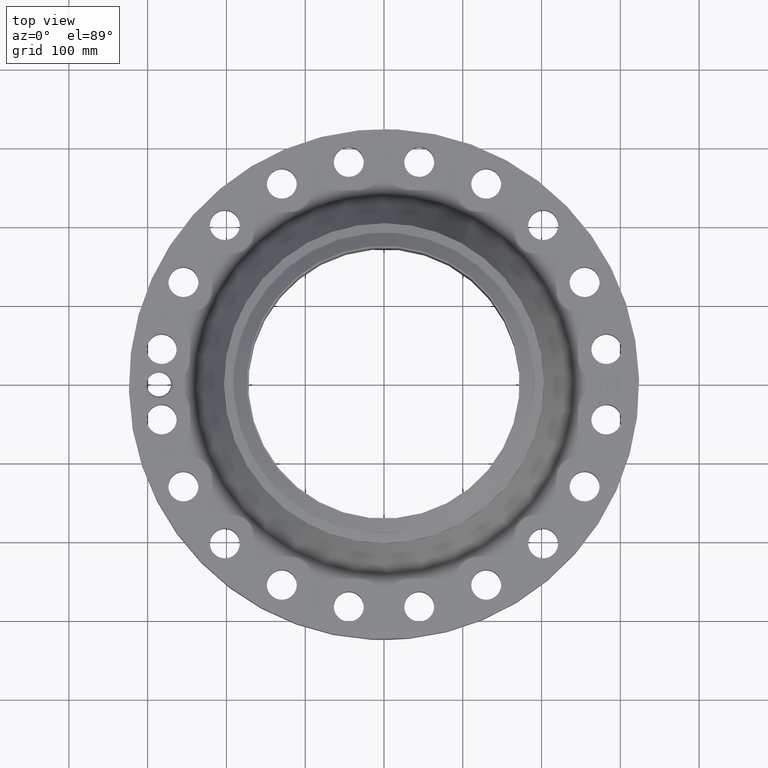
[diagram: clean part render]
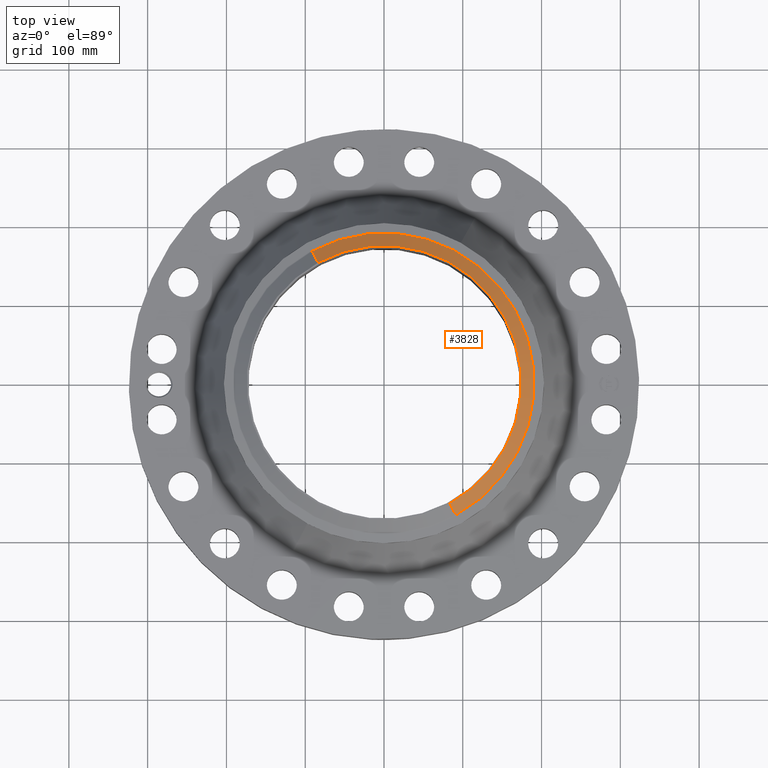
[diagram: same view with one face highlighted and labeled with its STEP entity id]
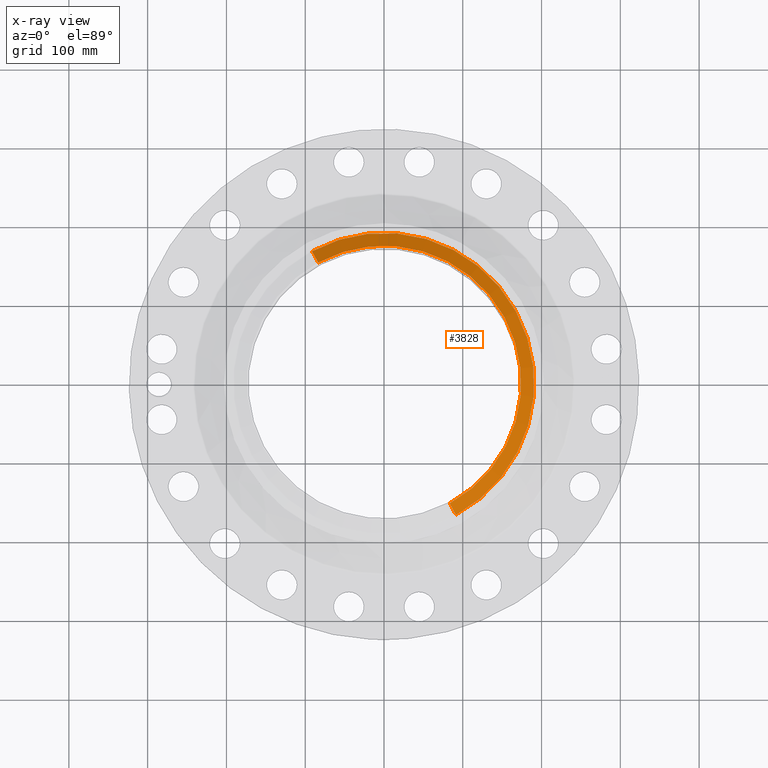
[diagram: x-ray of the same camera — body ghosted, the highlighted face saturated]
A machine part, top view. The second image highlights one B-rep face of the part: STEP entity #3828.
The next image is the same camera in x-ray: the body ghosted, the highlighted face saturated — about 0% of this face is hidden behind the body in this view.
In plain terms, the highlighted conical surface has half-angle 52.5 deg.
Its self-contained STEP definition (entity closure, byte-faithful):
#2956=AXIS2_PLACEMENT_3D('Circle Axis2P3D',#2954,#2955,$) ;
#3789=AXIS2_PLACEMENT_3D('Cone Axis2P3D',#3786,#3787,#3788) ;
#3819=AXIS2_PLACEMENT_3D('Circle Axis2P3D',#3817,#3818,$) ;
#2954=CARTESIAN_POINT('Axis2P3D Location',(0.,0.,6.25000000002)) ;
#2958=CARTESIAN_POINT('Vertex',(3.2887346197,-6.01998834133,6.25000000003)) ;
#2960=CARTESIAN_POINT('Vertex',(-3.2887346197,6.01998834133,6.25000000003)) ;
#3786=CARTESIAN_POINT('Axis2P3D Location',(0.,0.,6.25000000003)) ;
#3791=CARTESIAN_POINT('Line Origine',(-3.44367592225,6.30360649323,6.00201437259)) ;
#3795=CARTESIAN_POINT('Vertex',(-3.5986172248,6.58722464514,5.75402874515)) ;
#3802=CARTESIAN_POINT('Vertex',(3.5986172248,-6.58722464514,5.75402874515)) ;
#3805=CARTESIAN_POINT('Line Origine',(3.44367592225,-6.30360649323,6.00201437259)) ;
#3817=CARTESIAN_POINT('Axis2P3D Location',(0.,0.,5.75402874515)) ;
#2955=DIRECTION('Axis2P3D Direction',(0.,0.,-0.0393700787402)) ;
#3787=DIRECTION('Axis2P3D Direction',(-0.,-0.,-0.0393700787402)) ;
#3788=DIRECTION('Axis2P3D XDirection',(-0.0188750212049,0.0345504945626,0.)) ;
#3792=DIRECTION('Vector Direction',(-0.014974561121,0.02741075027,-0.023966985394)) ;
#3806=DIRECTION('Vector Direction',(0.014974561121,-0.02741075027,-0.023966985394)) ;
#3818=DIRECTION('Axis2P3D Direction',(0.,0.,-0.0393700787402)) ;
#3793=VECTOR('Line Direction',#3792,0.0393700787402) ;
#3807=VECTOR('Line Direction',#3806,0.0393700787402) ;
#3823=ORIENTED_EDGE('',*,*,#2962,.F.) ;
#3824=ORIENTED_EDGE('',*,*,#3809,.T.) ;
#3825=ORIENTED_EDGE('',*,*,#3821,.T.) ;
#3826=ORIENTED_EDGE('',*,*,#3797,.F.) ;
#3828=ADVANCED_FACE('PartBody',(#3827),#3790,.T.) ;
#2957=CIRCLE('generated circle',#2956,6.85974015751) ;
#3820=CIRCLE('generated circle',#3819,7.50610248105) ;
#3790=CONICAL_SURFACE('Cone',#3789,6.85974015751,0.916297857297) ;
#2962=EDGE_CURVE('',#2959,#2961,#2957,.F.) ;
#3797=EDGE_CURVE('',#2961,#3796,#3794,.T.) ;
#3809=EDGE_CURVE('',#2959,#3803,#3808,.T.) ;
#3821=EDGE_CURVE('',#3803,#3796,#3820,.F.) ;
#3822=EDGE_LOOP('',(#3823,#3824,#3825,#3826)) ;
#3827=FACE_OUTER_BOUND('',#3822,.T.) ;
#3794=LINE('Line',#3791,#3793) ;
#3808=LINE('Line',#3805,#3807) ;
#2959=VERTEX_POINT('',#2958) ;
#2961=VERTEX_POINT('',#2960) ;
#3796=VERTEX_POINT('',#3795) ;
#3803=VERTEX_POINT('',#3802) ;